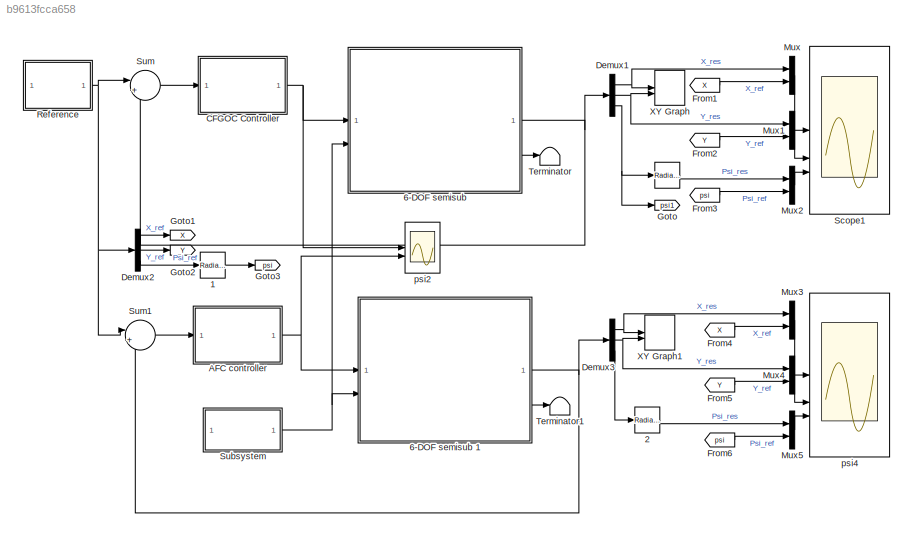
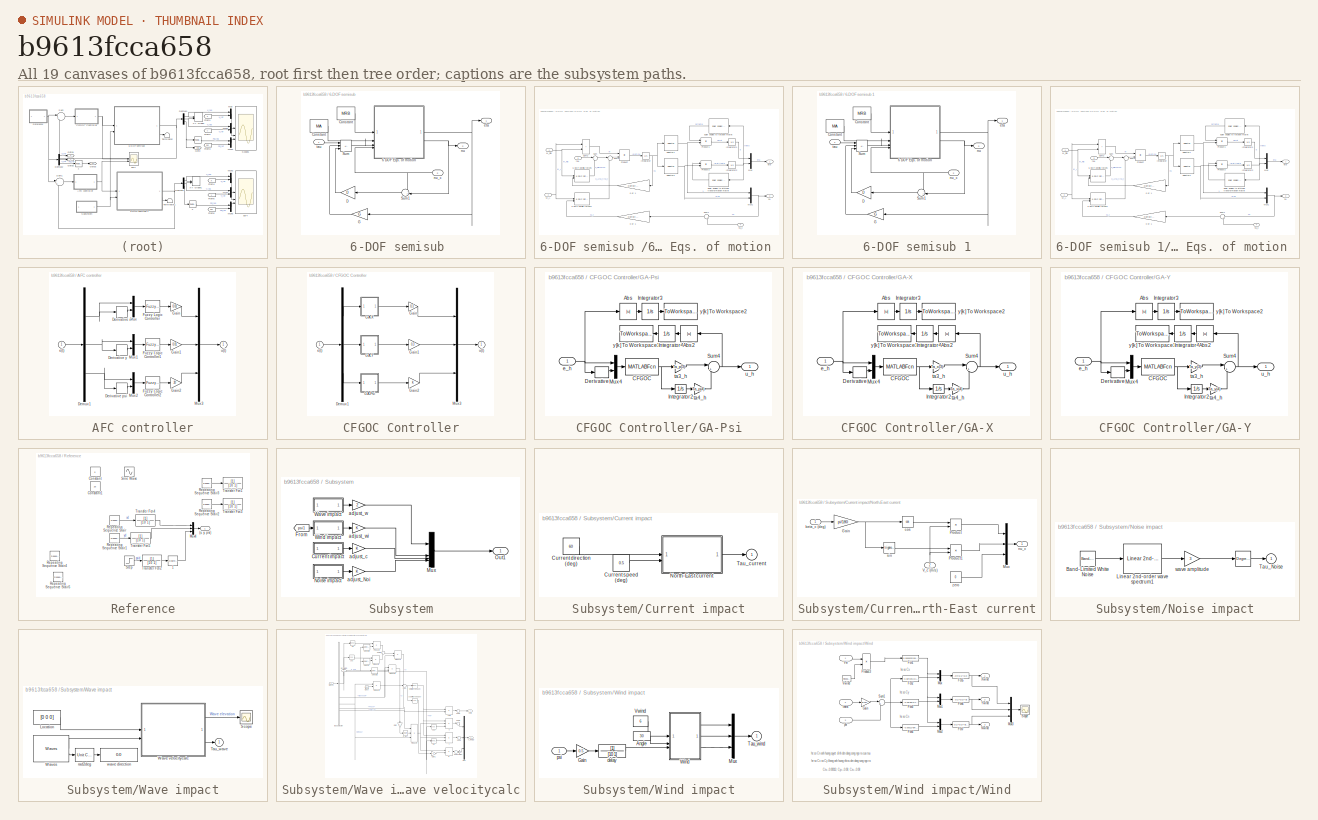
[diagram: thumbnail index - all 19 canvases of the model, root first then tree order]
MODEL slx_b9613fcca658
KIND model
CONFIG AbsTol = auto
CONFIG EnableMultiTasking = on
CONFIG FixedStep = auto
CONFIG MaxStep = auto
CONFIG MinStep = auto
CONFIG RelTol = 1e-3
CONFIG SampleTimeConstraint = Unconstrained
CONFIG SolverName = ode45
CONFIG StartTime = 0.0
CONFIG StopTime = 1500
BLOCK [Reference]       REF=simulink_extras/Transformations/Radians
to Degrees
  SourceBlock = simulink_extras/Transformations/Radians\nto Degrees
  SourceType = RadiansToDegrees
BLOCK [Reference]     1  REF=simulink_extras/Transformations/Radians
to Degrees
  SourceBlock = simulink_extras/Transformations/Radians\nto Degrees
  SourceType = RadiansToDegrees
BLOCK [Reference]     2  REF=simulink_extras/Transformations/Radians
to Degrees
  SourceBlock = simulink_extras/Transformations/Radians\nto Degrees
  SourceType = RadiansToDegrees
BLOCK [SubSystem] 6-DOF semisub 
  AncestorBlock = mssSimulink/Marine craft models/6-DOF semisub
  InitFcn = load MSS/VESSELS/rigModel/rig.mat
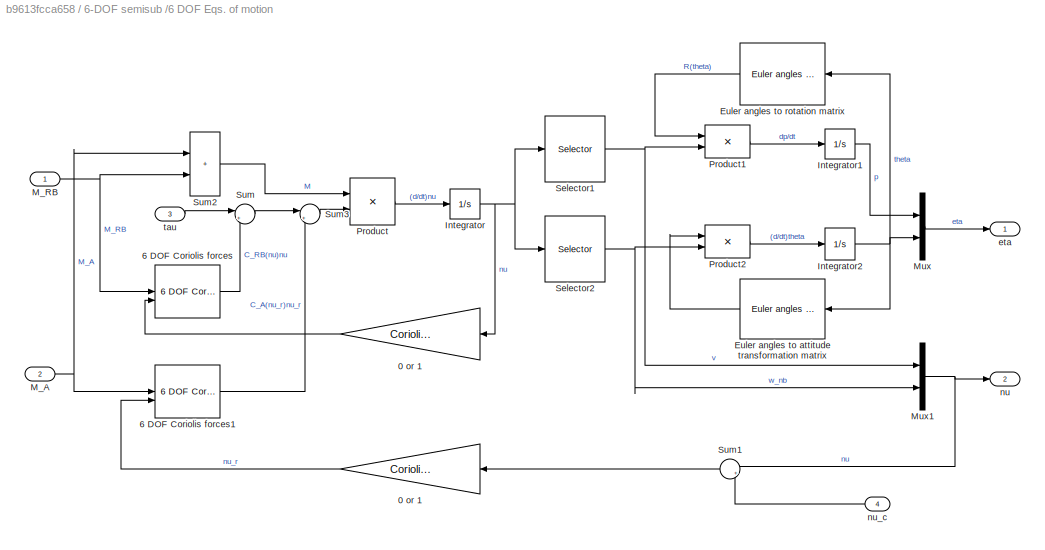
BLOCK [SubSystem] 6-DOF semisub /6 DOF Eqs. of motion 
  AncestorBlock = mssSimulink/Modelling/Kinetics /6 DOF Eqs. of motion
BLOCK [Gain] 6-DOF semisub /6 DOF Eqs. of motion /0 or 1
  Gain = CoriolisOnOff-1
  OutDataTypeStr = Inherit: Same as input
  ParamDataTypeStr = Inherit: Same as input
  SaturateOnIntegerOverflow = on
BLOCK [Gain] 6-DOF semisub /6 DOF Eqs. of motion /0 or 1   
  Gain = CoriolisOnOff-1
  OutDataTypeStr = Inherit: Same as input
  ParamDataTypeStr = Inherit: Same as input
  SaturateOnIntegerOverflow = on
BLOCK [Reference] 6-DOF semisub /6 DOF Eqs. of motion /6 DOF Coriolis forces  REF=mssSimulink/Modelling/Kinetics /Support/6 DOF Coriolis forces
  SourceBlock = mssSimulink/Modelling/Kinetics /Support/6 DOF Coriolis forces
  SourceType = SubSystem
BLOCK [Reference] 6-DOF semisub /6 DOF Eqs. of motion /6 DOF Coriolis forces1  REF=mssSimulink/Modelling/Kinetics /Support/6 DOF Coriolis forces
  SourceBlock = mssSimulink/Modelling/Kinetics /Support/6 DOF Coriolis forces
  SourceType = SubSystem
BLOCK [Reference] 6-DOF semisub /6 DOF Eqs. of motion /Euler angles to attitude transformation matrix  REF=mssSimulink/Modelling/Kinematics/Euler angles to attitude
transformation matrix
  SourceBlock = mssSimulink/Modelling/Kinematics/Euler angles to attitude\ntransformation matrix
  SourceType = Euler2T
BLOCK [Reference] 6-DOF semisub /6 DOF Eqs. of motion /Euler angles to rotation matrix  REF=mssSimulink/Modelling/Kinematics/Euler angles to
rotation matrix
  SourceBlock = mssSimulink/Modelling/Kinematics/Euler angles to\nrotation matrix
  SourceType = Euler2R
BLOCK [Integrator] 6-DOF semisub /6 DOF Eqs. of motion /Integrator
  InitialCondition = nu0
BLOCK [Integrator] 6-DOF semisub /6 DOF Eqs. of motion /Integrator1
  InitialCondition = eta0(1:3)
BLOCK [Integrator] 6-DOF semisub /6 DOF Eqs. of motion /Integrator2
  InitialCondition = eta0(4:6)
BLOCK [Inport] 6-DOF semisub /6 DOF Eqs. of motion /M_A
  Port = 2
BLOCK [Inport] 6-DOF semisub /6 DOF Eqs. of motion /M_RB
BLOCK [Mux] 6-DOF semisub /6 DOF Eqs. of motion /Mux
  DisplayOption = bar
  Inputs = 2
BLOCK [Mux] 6-DOF semisub /6 DOF Eqs. of motion /Mux1
  DisplayOption = bar
  Inputs = 2
BLOCK [Product] 6-DOF semisub /6 DOF Eqs. of motion /Product
  Inputs = /*
  Multiplication = Matrix(*)
  OutDataTypeStr = Inherit: Same as first input
  SaturateOnIntegerOverflow = on
BLOCK [Product] 6-DOF semisub /6 DOF Eqs. of motion /Product1
  Inputs = **
  Multiplication = Matrix(*)
  OutDataTypeStr = Inherit: Same as first input
  SaturateOnIntegerOverflow = on
BLOCK [Product] 6-DOF semisub /6 DOF Eqs. of motion /Product2
  Inputs = **
  Multiplication = Matrix(*)
  OutDataTypeStr = Inherit: Same as first input
  SaturateOnIntegerOverflow = on
BLOCK [Selector] 6-DOF semisub /6 DOF Eqs. of motion /Selector1
  IndexOptions = Index vector (dialog)
  Indices = [1 2 3]
  InputPortWidth = 6
  OutputSizes = 1
BLOCK [Selector] 6-DOF semisub /6 DOF Eqs. of motion /Selector2
  IndexOptions = Index vector (dialog)
  Indices = [4 5 6]
  InputPortWidth = 6
  OutputSizes = 1
BLOCK [Sum] 6-DOF semisub /6 DOF Eqs. of motion /Sum
  Inputs = |+-
  SaturateOnIntegerOverflow = on
BLOCK [Sum] 6-DOF semisub /6 DOF Eqs. of motion /Sum1
  Inputs = |+-
  NameLocation = top
  SaturateOnIntegerOverflow = on
BLOCK [Sum] 6-DOF semisub /6 DOF Eqs. of motion /Sum2
  IconShape = rectangular
  SaturateOnIntegerOverflow = on
BLOCK [Sum] 6-DOF semisub /6 DOF Eqs. of motion /Sum3
  Inputs = |+-
  SaturateOnIntegerOverflow = on
BLOCK [Outport] 6-DOF semisub /6 DOF Eqs. of motion /eta
  VectorParamsAs1DForOutWhenUnconnected = off
BLOCK [Outport] 6-DOF semisub /6 DOF Eqs. of motion /nu
  Port = 2
  VectorParamsAs1DForOutWhenUnconnected = off
BLOCK [Inport] 6-DOF semisub /6 DOF Eqs. of motion /nu_c
  Port = 4
BLOCK [Inport] 6-DOF semisub /6 DOF Eqs. of motion /tau
  Port = 3
BLOCK [Constant] 6-DOF semisub /Constant
  Value = MRB
BLOCK [Constant] 6-DOF semisub /Constant 
  Value = MA
BLOCK [Gain] 6-DOF semisub /D
  Gain = D
  Multiplication = Matrix(K*u)
  OutDataTypeStr = Inherit: Same as input
  ParamDataTypeStr = Inherit: Same as input
  SaturateOnIntegerOverflow = on
BLOCK [Gain] 6-DOF semisub /G
  Gain = G
  Multiplication = Matrix(K*u)
  OutDataTypeStr = Inherit: Same as input
  ParamDataTypeStr = Inherit: Same as input
  SaturateOnIntegerOverflow = on
BLOCK [Sum] 6-DOF semisub /Sum
  IconShape = rectangular
  InputSameDT = on
  Inputs = +--
  OutDataTypeStr = Inherit: Same as first input
  SaturateOnIntegerOverflow = on
BLOCK [Sum] 6-DOF semisub /Sum1
  Inputs = -+|
  NameLocation = top
  SaturateOnIntegerOverflow = on
BLOCK [Outport] 6-DOF semisub /eta
  InitialOutput = 0
  VectorParamsAs1DForOutWhenUnconnected = off
BLOCK [Outport] 6-DOF semisub /nu
  InitialOutput = 0
  Port = 2
  VectorParamsAs1DForOutWhenUnconnected = off
BLOCK [Inport] 6-DOF semisub /nu_c
  Port = 2
BLOCK [Inport] 6-DOF semisub /tau
BLOCK [SubSystem] 6-DOF semisub 1
  AncestorBlock = mssSimulink/Marine craft models/6-DOF semisub
  InitFcn = load MSS/VESSELS/rigModel/rig.mat
BLOCK [SubSystem] 6-DOF semisub 1/6 DOF Eqs. of motion 
  AncestorBlock = mssSimulink/Modelling/Kinetics /6 DOF Eqs. of motion
BLOCK [Gain] 6-DOF semisub 1/6 DOF Eqs. of motion /0 or 1
  Gain = CoriolisOnOff-1
  OutDataTypeStr = Inherit: Same as input
  ParamDataTypeStr = Inherit: Same as input
  SaturateOnIntegerOverflow = on
BLOCK [Gain] 6-DOF semisub 1/6 DOF Eqs. of motion /0 or 1   
  Gain = CoriolisOnOff-1
  OutDataTypeStr = Inherit: Same as input
  ParamDataTypeStr = Inherit: Same as input
  SaturateOnIntegerOverflow = on
BLOCK [Reference] 6-DOF semisub 1/6 DOF Eqs. of motion /6 DOF Coriolis forces  REF=mssSimulink/Modelling/Kinetics /Support/6 DOF Coriolis forces
  SourceBlock = mssSimulink/Modelling/Kinetics /Support/6 DOF Coriolis forces
  SourceType = SubSystem
BLOCK [Reference] 6-DOF semisub 1/6 DOF Eqs. of motion /6 DOF Coriolis forces1  REF=mssSimulink/Modelling/Kinetics /Support/6 DOF Coriolis forces
  SourceBlock = mssSimulink/Modelling/Kinetics /Support/6 DOF Coriolis forces
  SourceType = SubSystem
BLOCK [Reference] 6-DOF semisub 1/6 DOF Eqs. of motion /Euler angles to attitude transformation matrix  REF=mssSimulink/Modelling/Kinematics/Euler angles to attitude
transformation matrix
  SourceBlock = mssSimulink/Modelling/Kinematics/Euler angles to attitude\ntransformation matrix
  SourceType = Euler2T
BLOCK [Reference] 6-DOF semisub 1/6 DOF Eqs. of motion /Euler angles to rotation matrix  REF=mssSimulink/Modelling/Kinematics/Euler angles to
rotation matrix
  SourceBlock = mssSimulink/Modelling/Kinematics/Euler angles to\nrotation matrix
  SourceType = Euler2R
BLOCK [Integrator] 6-DOF semisub 1/6 DOF Eqs. of motion /Integrator
  InitialCondition = nu0
BLOCK [Integrator] 6-DOF semisub 1/6 DOF Eqs. of motion /Integrator1
  InitialCondition = eta0(1:3)
BLOCK [Integrator] 6-DOF semisub 1/6 DOF Eqs. of motion /Integrator2
  InitialCondition = eta0(4:6)
BLOCK [Inport] 6-DOF semisub 1/6 DOF Eqs. of motion /M_A
  Port = 2
BLOCK [Inport] 6-DOF semisub 1/6 DOF Eqs. of motion /M_RB
BLOCK [Mux] 6-DOF semisub 1/6 DOF Eqs. of motion /Mux
  DisplayOption = bar
  Inputs = 2
BLOCK [Mux] 6-DOF semisub 1/6 DOF Eqs. of motion /Mux1
  DisplayOption = bar
  Inputs = 2
BLOCK [Product] 6-DOF semisub 1/6 DOF Eqs. of motion /Product
  Inputs = /*
  Multiplication = Matrix(*)
  OutDataTypeStr = Inherit: Same as first input
  SaturateOnIntegerOverflow = on
BLOCK [Product] 6-DOF semisub 1/6 DOF Eqs. of motion /Product1
  Inputs = **
  Multiplication = Matrix(*)
  OutDataTypeStr = Inherit: Same as first input
  SaturateOnIntegerOverflow = on
BLOCK [Product] 6-DOF semisub 1/6 DOF Eqs. of motion /Product2
  Inputs = **
  Multiplication = Matrix(*)
  OutDataTypeStr = Inherit: Same as first input
  SaturateOnIntegerOverflow = on
BLOCK [Selector] 6-DOF semisub 1/6 DOF Eqs. of motion /Selector1
  IndexOptions = Index vector (dialog)
  Indices = [1 2 3]
  InputPortWidth = 6
  OutputSizes = 1
BLOCK [Selector] 6-DOF semisub 1/6 DOF Eqs. of motion /Selector2
  IndexOptions = Index vector (dialog)
  Indices = [4 5 6]
  InputPortWidth = 6
  OutputSizes = 1
BLOCK [Sum] 6-DOF semisub 1/6 DOF Eqs. of motion /Sum
  Inputs = |+-
  SaturateOnIntegerOverflow = on
BLOCK [Sum] 6-DOF semisub 1/6 DOF Eqs. of motion /Sum1
  Inputs = |+-
  NameLocation = top
  SaturateOnIntegerOverflow = on
BLOCK [Sum] 6-DOF semisub 1/6 DOF Eqs. of motion /Sum2
  IconShape = rectangular
  SaturateOnIntegerOverflow = on
BLOCK [Sum] 6-DOF semisub 1/6 DOF Eqs. of motion /Sum3
  Inputs = |+-
  SaturateOnIntegerOverflow = on
BLOCK [Outport] 6-DOF semisub 1/6 DOF Eqs. of motion /eta
  VectorParamsAs1DForOutWhenUnconnected = off
BLOCK [Outport] 6-DOF semisub 1/6 DOF Eqs. of motion /nu
  Port = 2
  VectorParamsAs1DForOutWhenUnconnected = off
BLOCK [Inport] 6-DOF semisub 1/6 DOF Eqs. of motion /nu_c
  Port = 4
BLOCK [Inport] 6-DOF semisub 1/6 DOF Eqs. of motion /tau
  Port = 3
BLOCK [Constant] 6-DOF semisub 1/Constant
  Value = MRB
BLOCK [Constant] 6-DOF semisub 1/Constant 
  Value = MA
BLOCK [Gain] 6-DOF semisub 1/D
  Gain = D
  Multiplication = Matrix(K*u)
  OutDataTypeStr = Inherit: Same as input
  ParamDataTypeStr = Inherit: Same as input
  SaturateOnIntegerOverflow = on
BLOCK [Gain] 6-DOF semisub 1/G
  Gain = G
  Multiplication = Matrix(K*u)
  OutDataTypeStr = Inherit: Same as input
  ParamDataTypeStr = Inherit: Same as input
  SaturateOnIntegerOverflow = on
BLOCK [Sum] 6-DOF semisub 1/Sum
  IconShape = rectangular
  InputSameDT = on
  Inputs = +--
  OutDataTypeStr = Inherit: Same as first input
  SaturateOnIntegerOverflow = on
BLOCK [Sum] 6-DOF semisub 1/Sum1
  Inputs = -+|
  NameLocation = top
  SaturateOnIntegerOverflow = on
BLOCK [Outport] 6-DOF semisub 1/eta
  InitialOutput = 0
  VectorParamsAs1DForOutWhenUnconnected = off
BLOCK [Outport] 6-DOF semisub 1/nu
  InitialOutput = 0
  Port = 2
  VectorParamsAs1DForOutWhenUnconnected = off
BLOCK [Inport] 6-DOF semisub 1/nu_c
  Port = 2
BLOCK [Inport] 6-DOF semisub 1/tau
BLOCK [SubSystem] AFC controller
BLOCK [Demux] AFC controller/Demux1
  Outputs = 3
BLOCK [Derivative] AFC controller/Derivative psi
BLOCK [Derivative] AFC controller/Derivative x
BLOCK [Derivative] AFC controller/Derivative y
BLOCK [Reference] AFC controller/Fuzzy Logic Controller  REF=fuzblock/Fuzzy Logic   (lib defined in mdl_858b3b3e7478)
Controller
  SourceBlock = fuzblock/Fuzzy Logic \nController
  SourceType = Fuzzy Inference System
BLOCK [Reference] AFC controller/Fuzzy Logic Controller1  REF=fuzblock/Fuzzy Logic   (lib defined in mdl_858b3b3e7478)
Controller
  SourceBlock = fuzblock/Fuzzy Logic \nController
  SourceType = Fuzzy Inference System
BLOCK [Reference] AFC controller/Fuzzy Logic Controller2  REF=fuzblock/Fuzzy Logic   (lib defined in mdl_858b3b3e7478)
Controller
  SourceBlock = fuzblock/Fuzzy Logic \nController
  SourceType = Fuzzy Inference System
BLOCK [Gain] AFC controller/Gain
  Gain = 0.03
BLOCK [Gain] AFC controller/Gain1
  Gain = 0.01
BLOCK [Gain] AFC controller/Gain2
  Gain = 20
BLOCK [Mux] AFC controller/Mux
  DisplayOption = bar
  Inputs = 2
BLOCK [Mux] AFC controller/Mux1
  DisplayOption = bar
  Inputs = 2
BLOCK [Mux] AFC controller/Mux2
  DisplayOption = bar
  Inputs = 2
BLOCK [Mux] AFC controller/Mux3
  DisplayOption = bar
  Inputs = 3
BLOCK [Inport] AFC controller/e(t)
BLOCK [Outport] AFC controller/u(t)
BLOCK [SubSystem] CFGOC Controller
BLOCK [Demux] CFGOC Controller/Demux1
  Outputs = 3
BLOCK [SubSystem] CFGOC Controller/GA-Psi
BLOCK [Abs] CFGOC Controller/GA-Psi/Abs
  SaturateOnIntegerOverflow = off
BLOCK [Abs] CFGOC Controller/GA-Psi/Abs2
  NameLocation = top
  SaturateOnIntegerOverflow = off
BLOCK [MATLABFcn] CFGOC Controller/GA-Psi/CFGOC
  MATLABFcn = TFC_xp
  OutputDimensions = 1
BLOCK [Derivative] CFGOC Controller/GA-Psi/Derivative
BLOCK [Integrator] CFGOC Controller/GA-Psi/Integrator2
BLOCK [Integrator] CFGOC Controller/GA-Psi/Integrator3
BLOCK [Integrator] CFGOC Controller/GA-Psi/Integrator4
  NameLocation = top
BLOCK [Mux] CFGOC Controller/GA-Psi/Mux4
  DisplayOption = bar
  Inputs = 2
BLOCK [Sum] CFGOC Controller/GA-Psi/Sum4
  InputSameDT = on
  Inputs = |++
  OutDataTypeStr = Inherit: Same as first input
  SaturateOnIntegerOverflow = on
BLOCK [Inport] CFGOC Controller/GA-Psi/e_h
BLOCK [Gain] CFGOC Controller/GA-Psi/ta3_h
  Gain = Ta_p(3)
BLOCK [Gain] CFGOC Controller/GA-Psi/ta4_h
  Gain = Ta_p(4)
  NameLocation = top
BLOCK [Outport] CFGOC Controller/GA-Psi/u_h
BLOCK [ToWorkspace] CFGOC Controller/GA-Psi/y[k] To Workspace2
  MaxDataPoints = inf
  SampleTime = -1
  SaveFormat = Timeseries
  VariableName = Sysp_Out1
BLOCK [ToWorkspace] CFGOC Controller/GA-Psi/y[k] To Workspace3
  MaxDataPoints = inf
  NameLocation = top
  SampleTime = -1
  SaveFormat = Timeseries
  VariableName = Sysp_Out2
BLOCK [SubSystem] CFGOC Controller/GA-X
BLOCK [Abs] CFGOC Controller/GA-X/Abs
  SaturateOnIntegerOverflow = off
BLOCK [Abs] CFGOC Controller/GA-X/Abs2
  NameLocation = top
  SaturateOnIntegerOverflow = off
BLOCK [MATLABFcn] CFGOC Controller/GA-X/CFGOC
  MATLABFcn = TFC_xx
  OutputDimensions = 1
BLOCK [Derivative] CFGOC Controller/GA-X/Derivative
BLOCK [Integrator] CFGOC Controller/GA-X/Integrator2
BLOCK [Integrator] CFGOC Controller/GA-X/Integrator3
BLOCK [Integrator] CFGOC Controller/GA-X/Integrator4
  NameLocation = top
BLOCK [Mux] CFGOC Controller/GA-X/Mux4
  DisplayOption = bar
  Inputs = 2
BLOCK [Sum] CFGOC Controller/GA-X/Sum4
  InputSameDT = on
  Inputs = |++
  OutDataTypeStr = Inherit: Same as first input
  SaturateOnIntegerOverflow = on
BLOCK [Inport] CFGOC Controller/GA-X/e_h
BLOCK [Gain] CFGOC Controller/GA-X/ta3_h
  Gain = Ta_x(3)
BLOCK [Gain] CFGOC Controller/GA-X/ta4_h
  Gain = Ta_x(4)
  NameLocation = top
BLOCK [Outport] CFGOC Controller/GA-X/u_h
BLOCK [ToWorkspace] CFGOC Controller/GA-X/y[k] To Workspace2
  MaxDataPoints = inf
  SampleTime = -1
  SaveFormat = Timeseries
  VariableName = Sysx_Out1
BLOCK [ToWorkspace] CFGOC Controller/GA-X/y[k] To Workspace3
  MaxDataPoints = inf
  NameLocation = top
  SampleTime = -1
  SaveFormat = Timeseries
  VariableName = Sysx_Out2
BLOCK [SubSystem] CFGOC Controller/GA-Y
BLOCK [Abs] CFGOC Controller/GA-Y/Abs
  SaturateOnIntegerOverflow = off
BLOCK [Abs] CFGOC Controller/GA-Y/Abs2
  NameLocation = top
  SaturateOnIntegerOverflow = off
BLOCK [MATLABFcn] CFGOC Controller/GA-Y/CFGOC
  MATLABFcn = TFC_xy
  OutputDimensions = 1
BLOCK [Derivative] CFGOC Controller/GA-Y/Derivative
BLOCK [Integrator] CFGOC Controller/GA-Y/Integrator2
BLOCK [Integrator] CFGOC Controller/GA-Y/Integrator3
BLOCK [Integrator] CFGOC Controller/GA-Y/Integrator4
  NameLocation = top
BLOCK [Mux] CFGOC Controller/GA-Y/Mux4
  DisplayOption = bar
  Inputs = 2
BLOCK [Sum] CFGOC Controller/GA-Y/Sum4
  InputSameDT = on
  Inputs = |++
  OutDataTypeStr = Inherit: Same as first input
  SaturateOnIntegerOverflow = on
BLOCK [Inport] CFGOC Controller/GA-Y/e_h
BLOCK [Gain] CFGOC Controller/GA-Y/ta3_h
  Gain = Ta_y(3)
BLOCK [Gain] CFGOC Controller/GA-Y/ta4_h
  Gain = Ta_y(4)
  NameLocation = top
BLOCK [Outport] CFGOC Controller/GA-Y/u_h
BLOCK [ToWorkspace] CFGOC Controller/GA-Y/y[k] To Workspace2
  MaxDataPoints = inf
  SampleTime = -1
  SaveFormat = Timeseries
  VariableName = Sysy_Out1
BLOCK [ToWorkspace] CFGOC Controller/GA-Y/y[k] To Workspace3
  MaxDataPoints = inf
  NameLocation = top
  SampleTime = -1
  SaveFormat = Timeseries
  VariableName = Sysy_Out2
BLOCK [Gain] CFGOC Controller/Gain
  Gain = 0.3
BLOCK [Gain] CFGOC Controller/Gain1
  Gain = 0.3
BLOCK [Gain] CFGOC Controller/Gain2
BLOCK [Mux] CFGOC Controller/Mux3
  DisplayOption = bar
  Inputs = 3
BLOCK [Inport] CFGOC Controller/e(t)
BLOCK [Outport] CFGOC Controller/u(t)
BLOCK [Demux] Demux1
  DisplayOption = none
  Outputs = 3
BLOCK [Demux] Demux2
  DisplayOption = none
  Outputs = 3
BLOCK [Demux] Demux3
  DisplayOption = none
  Outputs = 3
BLOCK [From] From1
  GotoTag = X
BLOCK [From] From2
  GotoTag = Y
BLOCK [From] From3
  GotoTag = psi
BLOCK [From] From4
  GotoTag = X
BLOCK [From] From5
  GotoTag = Y
BLOCK [From] From6
  GotoTag = psi
BLOCK [Goto] Goto
  GotoTag = psi1
BLOCK [Goto] Goto1
  GotoTag = X
BLOCK [Goto] Goto2
  GotoTag = Y
BLOCK [Goto] Goto3
  GotoTag = psi
BLOCK [Mux] Mux
  DisplayOption = bar
  Inputs = 2
BLOCK [Mux] Mux1
  DisplayOption = bar
  Inputs = 2
BLOCK [Mux] Mux2
  DisplayOption = bar
  Inputs = 2
BLOCK [Mux] Mux3
  DisplayOption = bar
  Inputs = 2
BLOCK [Mux] Mux4
  DisplayOption = bar
  Inputs = 2
BLOCK [Mux] Mux5
  DisplayOption = bar
  Inputs = 2
BLOCK [SubSystem] Reference
BLOCK [Reference] Reference/     1  REF=simulink_extras/Transformations/Degrees to
Radians
  SourceBlock = simulink_extras/Transformations/Degrees to\nRadians
  SourceType = DegreesToRadians
BLOCK [Outport] Reference/(x, y, psi)
BLOCK [Constant] Reference/Constant
  Value = 5
BLOCK [Constant] Reference/Constant1
  Value = 25
BLOCK [Mux] Reference/Mux4
  DisplayOption = bar
  Inputs = 3
BLOCK [Reference] Reference/Repeating Sequence Stair  REF=simulink/Sources/Repeating
Sequence
Stair
  SourceBlock = simulink/Sources/Repeating\nSequence\nStair
  SourceType = Repeating Sequence Stair
BLOCK [Reference] Reference/Repeating Sequence Stair1  REF=simulink/Sources/Repeating
Sequence
Stair
  SourceBlock = simulink/Sources/Repeating\nSequence\nStair
  SourceType = Repeating Sequence Stair
BLOCK [Reference] Reference/Repeating Sequence Stair2  REF=simulink/Sources/Repeating
Sequence
Stair
  SourceBlock = simulink/Sources/Repeating\nSequence\nStair
  SourceType = Repeating Sequence Stair
BLOCK [Reference] Reference/Repeating Sequence Stair3  REF=simulink/Sources/Repeating
Sequence
Stair
  SourceBlock = simulink/Sources/Repeating\nSequence\nStair
  SourceType = Repeating Sequence Stair
BLOCK [Reference] Reference/Repeating Sequence Stair4  REF=simulink/Sources/Repeating
Sequence
Stair
  SourceBlock = simulink/Sources/Repeating\nSequence\nStair
  SourceType = Repeating Sequence Stair
BLOCK [Reference] Reference/Repeating Sequence Stair5  REF=simulink/Sources/Repeating
Sequence
Stair
  SourceBlock = simulink/Sources/Repeating\nSequence\nStair
  SourceType = Repeating Sequence Stair
BLOCK [Sin] Reference/Sine Wave
  Frequency = 4
  SampleTime = 0
BLOCK [Step] Reference/Step
  After = 20
  SampleTime = 0
  Time = 0
BLOCK [TransferFcn] Reference/Transfer Fcn1
  Denominator = [10 1]
BLOCK [TransferFcn] Reference/Transfer Fcn2
  Denominator = [10 1]
BLOCK [TransferFcn] Reference/Transfer Fcn3
  Denominator = [10 1]
BLOCK [TransferFcn] Reference/Transfer Fcn4
  Denominator = [10 1]
BLOCK [TransferFcn] Reference/Transfer Fcn5
  Denominator = [10 1]
BLOCK [Scope] Scope1
  Floating = off
  NumInputPorts = 3
  ScopeSpecificationString = Simulink.scopes.TimeScopeBlockCfg('CurrentConfiguration', extmgr.ConfigurationSet(extmgr.Configuration('Core','General UI',true),extmgr.Configuration('Core','Source UI',true),extmgr.Configuration('Sources','WiredSimulink',true,'DataLoggingVariableName','ScopeData2','DataLoggingLimitDataPoints',true,'DataLoggingSaveFormat','Array','DataLoggingDecimation','1','DataLoggingDecimateData',true),extmgr.C...<+165ch>
BLOCK [SubSystem] Subsystem
BLOCK [SubSystem] Subsystem/Current impact
BLOCK [Constant] Subsystem/Current impact/Current direction (deg)
  Value = 60
BLOCK [Constant] Subsystem/Current impact/Current speed (deg)
  Value = 0.5
BLOCK [SubSystem] Subsystem/Current impact/North-East current
  AncestorBlock = marine_gnc/Environment/Current/North-East current
BLOCK [Gain] Subsystem/Current impact/North-East current/Gain
  Gain = pi/180
BLOCK [Mux] Subsystem/Current impact/North-East current/Mux
  DisplayOption = bar
  Inputs = 3
BLOCK [Product] Subsystem/Current impact/North-East current/Product
  RndMeth = Zero
BLOCK [Product] Subsystem/Current impact/North-East current/Product1
  RndMeth = Zero
BLOCK [Inport] Subsystem/Current impact/North-East current/V_c (m//s)
  NameLocation = left
  Port = 2
BLOCK [Inport] Subsystem/Current impact/North-East current/beta_c (deg)
BLOCK [Trigonometry] Subsystem/Current impact/North-East current/cos
  Operator = cos
BLOCK [Outport] Subsystem/Current impact/North-East current/nu_c
BLOCK [Trigonometry] Subsystem/Current impact/North-East current/sin
BLOCK [Constant] Subsystem/Current impact/North-East current/zero
  Value = 0
BLOCK [Outport] Subsystem/Current impact/Tau_current
BLOCK [From] Subsystem/From
  GotoTag = psi1
BLOCK [Mux] Subsystem/Mux
  DisplayOption = bar
BLOCK [SubSystem] Subsystem/Noise impact
BLOCK [Reference] Subsystem/Noise impact/     REF=simulink_extras/Transformations/Degrees to
Radians
  SourceBlock = simulink_extras/Transformations/Degrees to\nRadians
  SourceType = DegreesToRadians
BLOCK [Reference] Subsystem/Noise impact/Band-Limited White Noise  REF=simulink/Sources/Band-Limited
White Noise
  SourceBlock = simulink/Sources/Band-Limited\nWhite Noise
  SourceType = Band-Limited White Noise.
BLOCK [Reference] Subsystem/Noise impact/Linear 2nd-order wave spectrum1  REF=marine_gnc/Environment/Waves/Linear 2nd-order   (lib defined in mdl_10d96c221ba8, mdl_45f1105420c6)
wave spectrum
  SourceBlock = marine_gnc/Environment/Waves/Linear 2nd-order \nwave spectrum
BLOCK [Outport] Subsystem/Noise impact/Tau_Noise
BLOCK [Gain] Subsystem/Noise impact/wave amplitude
  Gain = 3
  NameLocation = top
  OutDataTypeStr = Inherit: Same as input
  ParamDataTypeStr = Inherit: Same as input
  SaturateOnIntegerOverflow = on
BLOCK [Outport] Subsystem/Out1
BLOCK [SubSystem] Subsystem/Wave impact
BLOCK [Constant] Subsystem/Wave impact/Location
  Value = [0 0 0]
BLOCK [Scope] Subsystem/Wave impact/Scope
  Floating = off
  NumInputPorts = 1
  ScopeSpecificationString = Simulink.scopes.TimeScopeBlockCfg('CurrentConfiguration', extmgr.ConfigurationSet(extmgr.Configuration('Core','General UI',true),extmgr.Configuration('Core','Source UI',true),extmgr.Configuration('Sources','WiredSimulink',true,'DataLoggingVariableName','ScopeData2','DataLoggingLimitDataPoints',true,'DataLoggingSaveFormat','Array','DataLoggingDecimation','1','DataLoggingDecimateData',true),extmgr.C...<+1525ch>
BLOCK [Outport] Subsystem/Wave impact/Tau_wave
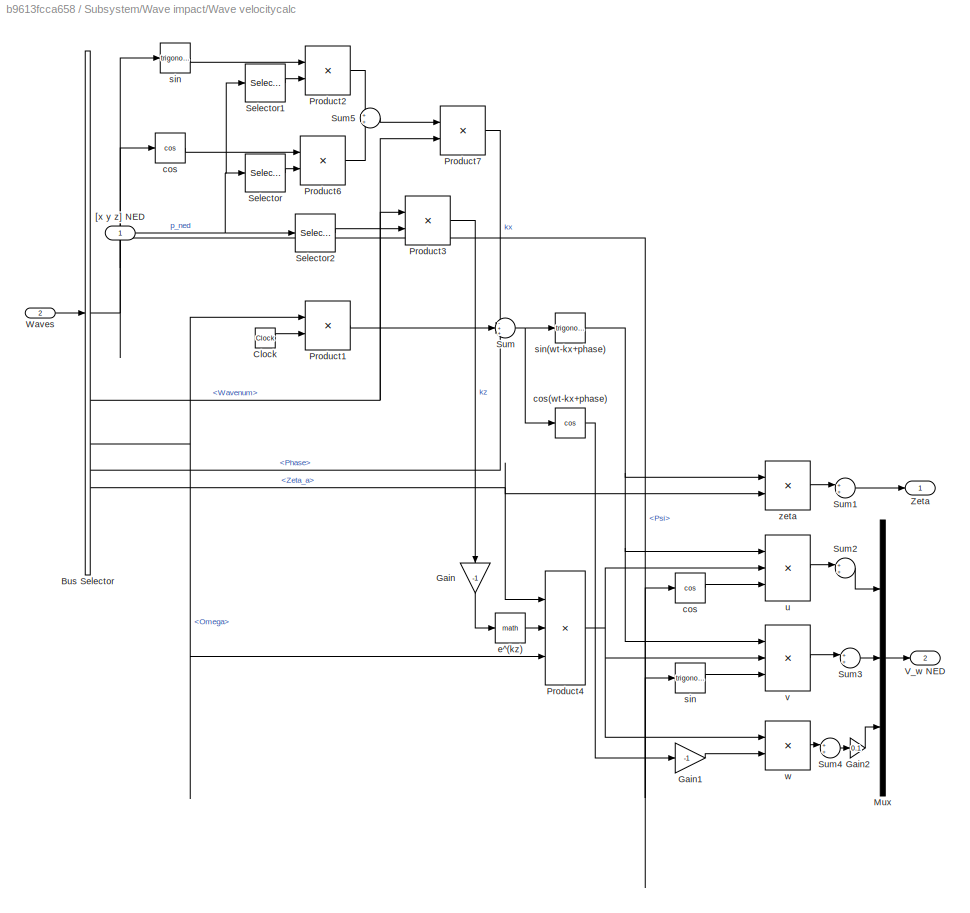
BLOCK [SubSystem] Subsystem/Wave impact/Wave velocitycalc
  AncestorBlock = marine_gnc/Environment/Waves/Wave velocitycalc
BLOCK [BusSelector] Subsystem/Wave impact/Wave velocitycalc/Bus Selector
  OutputSignals = Psi,Wavenum,Omega,Phase,Zeta_a
BLOCK [Clock] Subsystem/Wave impact/Wave velocitycalc/Clock
BLOCK [Gain] Subsystem/Wave impact/Wave velocitycalc/Gain
  Gain = -1
  NameLocation = left
  OutDataTypeStr = Inherit: Same as input
  ParamDataTypeStr = Inherit: Same as input
  SaturateOnIntegerOverflow = on
BLOCK [Gain] Subsystem/Wave impact/Wave velocitycalc/Gain1
  Gain = -1
  OutDataTypeStr = Inherit: Same as input
  ParamDataTypeStr = Inherit: Same as input
  SaturateOnIntegerOverflow = on
BLOCK [Gain] Subsystem/Wave impact/Wave velocitycalc/Gain2
  Gain = 0.1
  OutDataTypeStr = Inherit: Same as input
  ParamDataTypeStr = Inherit: Same as input
  SaturateOnIntegerOverflow = on
BLOCK [Mux] Subsystem/Wave impact/Wave velocitycalc/Mux
  DisplayOption = bar
  Inputs = 3
BLOCK [Product] Subsystem/Wave impact/Wave velocitycalc/Product1
  Inputs = **
  OutDataTypeStr = Inherit: Same as first input
  SaturateOnIntegerOverflow = on
BLOCK [Product] Subsystem/Wave impact/Wave velocitycalc/Product2
  Inputs = **
  OutDataTypeStr = Inherit: Same as first input
  SaturateOnIntegerOverflow = on
BLOCK [Product] Subsystem/Wave impact/Wave velocitycalc/Product3
  Inputs = **
  OutDataTypeStr = Inherit: Same as first input
  SaturateOnIntegerOverflow = on
BLOCK [Product] Subsystem/Wave impact/Wave velocitycalc/Product4
  Inputs = 3
  OutDataTypeStr = Inherit: Same as first input
  SaturateOnIntegerOverflow = on
BLOCK [Product] Subsystem/Wave impact/Wave velocitycalc/Product6
  Inputs = **
  OutDataTypeStr = Inherit: Same as first input
  SaturateOnIntegerOverflow = on
BLOCK [Product] Subsystem/Wave impact/Wave velocitycalc/Product7
  Inputs = **
  OutDataTypeStr = Inherit: Same as first input
  SaturateOnIntegerOverflow = on
BLOCK [Selector] Subsystem/Wave impact/Wave velocitycalc/Selector
  IndexOptions = Index vector (dialog)
  Indices = 1
  InputPortWidth = 3
  OutputSizes = 1
BLOCK [Selector] Subsystem/Wave impact/Wave velocitycalc/Selector1
  IndexOptions = Index vector (dialog)
  Indices = 2
  InputPortWidth = 3
  OutputSizes = 1
BLOCK [Selector] Subsystem/Wave impact/Wave velocitycalc/Selector2
  IndexOptions = Index vector (dialog)
  Indices = 3
  InputPortWidth = 3
  OutputSizes = 1
BLOCK [Sum] Subsystem/Wave impact/Wave velocitycalc/Sum
  Inputs = -++
  SaturateOnIntegerOverflow = on
BLOCK [Sum] Subsystem/Wave impact/Wave velocitycalc/Sum1
  Inputs = 1
  SaturateOnIntegerOverflow = on
BLOCK [Sum] Subsystem/Wave impact/Wave velocitycalc/Sum2
  Inputs = 1
  SaturateOnIntegerOverflow = on
BLOCK [Sum] Subsystem/Wave impact/Wave velocitycalc/Sum3
  Inputs = 1
  SaturateOnIntegerOverflow = on
BLOCK [Sum] Subsystem/Wave impact/Wave velocitycalc/Sum4
  Inputs = 1
  SaturateOnIntegerOverflow = on
BLOCK [Sum] Subsystem/Wave impact/Wave velocitycalc/Sum5
  SaturateOnIntegerOverflow = on
BLOCK [Outport] Subsystem/Wave impact/Wave velocitycalc/V_w NED
  Port = 2
BLOCK [Inport] Subsystem/Wave impact/Wave velocitycalc/Waves
  Port = 2
BLOCK [Outport] Subsystem/Wave impact/Wave velocitycalc/Zeta
BLOCK [Inport] Subsystem/Wave impact/Wave velocitycalc/[x y z] NED
BLOCK [Trigonometry] Subsystem/Wave impact/Wave velocitycalc/cos
  Operator = cos
BLOCK [Trigonometry] Subsystem/Wave impact/Wave velocitycalc/cos 
  Operator = cos
BLOCK [Trigonometry] Subsystem/Wave impact/Wave velocitycalc/cos(wt-kx+phase)
  Operator = cos
BLOCK [Math] Subsystem/Wave impact/Wave velocitycalc/e^(kz)
  SignedPower = on
BLOCK [Trigonometry] Subsystem/Wave impact/Wave velocitycalc/sin
BLOCK [Trigonometry] Subsystem/Wave impact/Wave velocitycalc/sin 
BLOCK [Trigonometry] Subsystem/Wave impact/Wave velocitycalc/sin(wt-kx+phase)
BLOCK [Product] Subsystem/Wave impact/Wave velocitycalc/u
  Inputs = ***
  OutDataTypeStr = Inherit: Same as first input
  SaturateOnIntegerOverflow = on
BLOCK [Product] Subsystem/Wave impact/Wave velocitycalc/v
  Inputs = ***
  OutDataTypeStr = Inherit: Same as first input
  SaturateOnIntegerOverflow = on
BLOCK [Product] Subsystem/Wave impact/Wave velocitycalc/w
  Inputs = **
  OutDataTypeStr = Inherit: Same as first input
  SaturateOnIntegerOverflow = on
BLOCK [Product] Subsystem/Wave impact/Wave velocitycalc/zeta
  Inputs = **
  OutDataTypeStr = Inherit: Same as first input
  SaturateOnIntegerOverflow = on
BLOCK [Reference] Subsystem/Wave impact/Waves  REF=marine_gnc/Environment/Waves/Waves  (lib defined in mdl_10d96c221ba8, mdl_45f1105420c6)
  SourceBlock = marine_gnc/Environment/Waves/Waves
  SourceType = Waves
BLOCK [Reference] Subsystem/Wave impact/rad2deg  REF=marine_gnc/Utilities/Math Operations/Unit Conversion  (lib defined in mdl_10d96c221ba8, mdl_45f1105420c6)
  SourceBlock = marine_gnc/Utilities/Math Operations/Unit Conversion
  SourceType = Unit Conversion
BLOCK [Display] Subsystem/Wave impact/wave direction
  Decimation = 1
BLOCK [SubSystem] Subsystem/Wind impact
BLOCK [Constant] Subsystem/Wind impact/Angle
  Value = 30
BLOCK [Gain] Subsystem/Wind impact/Gain
  Gain = 0.5
BLOCK [Mux] Subsystem/Wind impact/Mux
  DisplayOption = bar
  Inputs = 3
BLOCK [Outport] Subsystem/Wind impact/Tau_wind
BLOCK [Constant] Subsystem/Wind impact/Vwind
  NameLocation = top
  Value = 6
BLOCK [SubSystem] Subsystem/Wind impact/Wind
  NameLocation = top
BLOCK [Fcn] Subsystem/Wind impact/Wind/Fcn1
  Expr = 0.0000032*pa*u(1)*u(1)
BLOCK [Fcn] Subsystem/Wind impact/Wind/Fcn2
  Expr = -0.08*cos(u(1))
BLOCK [Fcn] Subsystem/Wind impact/Wind/Fcn3
  Expr = -0.08*sin(u(1))
BLOCK [Fcn] Subsystem/Wind impact/Wind/Fcn4
  Expr = -0.00011*sin(2*u(1))
BLOCK [Fcn] Subsystem/Wind impact/Wind/Fcn5
  Expr = Ats*u(1)*u(2)
BLOCK [Fcn] Subsystem/Wind impact/Wind/Fcn6
  Expr = u(1)*u(2)*Als
BLOCK [Fcn] Subsystem/Wind impact/Wind/Fcn7
  Expr = u(1)*u(2)*Als*Loa
BLOCK [Gain] Subsystem/Wind impact/Wind/Gain
  Gain = pi/180
BLOCK [Mux] Subsystem/Wind impact/Wind/Mux
  DisplayOption = bar
  Inputs = 2
BLOCK [Mux] Subsystem/Wind impact/Wind/Mux1
  DisplayOption = bar
  Inputs = 2
BLOCK [Mux] Subsystem/Wind impact/Wind/Mux2
  DisplayOption = bar
  Inputs = 2
BLOCK [Mux] Subsystem/Wind impact/Wind/Mux3
  DisplayOption = bar
  Inputs = 3
BLOCK [Outport] Subsystem/Wind impact/Wind/Nwind
  Port = 3
BLOCK [Product] Subsystem/Wind impact/Wind/Product3
  RndMeth = Zero
BLOCK [Scope] Subsystem/Wind impact/Wind/Scope
  Floating = off
  NumInputPorts = 1
  ScopeSpecificationString = C++SS(StrPVP('Location','[5, 48, 1285, 759]'),StrPVP('Open','off'),MxPVP('AxesTitles',54,'struct(''axes1'',''%<SignalLabel>'')'),StrPVP('ShowLegends','off'),StrPVP('YMin','-500000'),StrPVP('YMax','8e+006'),StrPVP('SaveName','ScopeData1'),StrPVP('DataFormat','StructureWithTime'),StrPVP('BlockParamSampleTime','0'),StrPVP('LimitDataPoints','on'),StrPVP('Decimation','1'),StrPVP('BlockParamSampleInput'...<+8ch>
BLOCK [Sum] Subsystem/Wind impact/Wind/Sum1
  Inputs = |+-
BLOCK [Inport] Subsystem/Wind impact/Wind/Vw
BLOCK [Reference] Subsystem/Wind impact/Wind/Vwind  REF=simulink/Sources/Repeating
Sequence
  NameLocation = top
  SourceBlock = simulink/Sources/Repeating\nSequence
  SourceType = Repeating table
BLOCK [Outport] Subsystem/Wind impact/Wind/Xwind
BLOCK [Outport] Subsystem/Wind impact/Wind/Ywind
  Port = 2
BLOCK [Inport] Subsystem/Wind impact/Wind/phi
  Port = 3
BLOCK [Inport] Subsystem/Wind impact/Wind/thera
  Port = 2
BLOCK [TransferFcn] Subsystem/Wind impact/delay
  Denominator = [10 1]
BLOCK [Inport] Subsystem/Wind impact/psi
BLOCK [Gain] Subsystem/adjust_Noi
BLOCK [Gain] Subsystem/adjust_c
BLOCK [Gain] Subsystem/adjust_w
  Gain = 2
BLOCK [Gain] Subsystem/adjust_wi
BLOCK [Sum] Sum
  Inputs = |+-
BLOCK [Sum] Sum1
  Inputs = |+-
BLOCK [Terminator] Terminator
BLOCK [Terminator] Terminator1
BLOCK [Record] XY Graph
  CompatibilityTag = XY
  FileSettingsInternal = {"entries":[{"content":{"excelSettings":{"content":{},"type":"Streamout.ExcelSettings"}},"type":"Streamout.FileSettingStorage","uuid":""}],"packageUris":["http:\/\/schema.mathworks.com\/mf0\/streamout_blocks\/R2020a"],"version":"1.0"}
  Layout = [1 1]
  SignalsInternal = {"entries":[{"content":{"signals":[{"content":{"blockPath":[],"dimensions":[1],"domain":"","lineColor":"#a2142f","plots":[1],"port":1,"signalID":43,"signalName":"XY Graph:1"},"type":"RecordBlkView.Signal","uuid":""},{"content":{"blockPath":[],"dimensions":[1],"domain":"","lineColor":"#139fff","plots":[1],"port":2,"signalID":46,"signalName":"XY Graph:2"},"type":"RecordBlkView.Signal","uuid":""}]},"...<+142ch>
  VisualizationBindings = {"xyplotplugin":{"info":[{"series":[{"bindingParametersList":[{"parameter":"X-Axis","signalID":43,"signalName":"XY Graph:1"},{"parameter":"Y-Axis","signalID":46,"signalName":"XY Graph:2"}],"seriesID":58743}],"subplotID":1}]}}
  st = 0.1
BLOCK [Record] XY Graph1
  CompatibilityTag = XY
  FileSettingsInternal = {"entries":[{"content":{"excelSettings":{"content":{},"type":"Streamout.ExcelSettings"}},"type":"Streamout.FileSettingStorage","uuid":""}],"packageUris":["http:\/\/schema.mathworks.com\/mf0\/streamout_blocks\/R2020a"],"version":"1.0"}
  Layout = [1 1]
  SignalsInternal = {"entries":[{"content":{"signals":[{"content":{"blockPath":[],"dimensions":[1],"domain":"","lineColor":"#a2142f","plots":[1],"port":1,"signalID":35,"signalName":"X_res"},"type":"RecordBlkView.Signal","uuid":""},{"content":{"blockPath":[],"dimensions":[1],"domain":"","lineColor":"#139fff","plots":[1],"port":2,"signalID":38,"signalName":"Y_res"},"type":"RecordBlkView.Signal","uuid":""}]},"type":"Rec...<+132ch>
  VisualizationBindings = {"xyplotplugin":{"info":[{"series":[{"bindingParametersList":[{"parameter":"X-Axis","signalID":35,"signalName":"X_res"},{"parameter":"Y-Axis","signalID":38,"signalName":"Y_res"}],"seriesID":17634}],"subplotID":1}]}}
  st = 0.1
BLOCK [Scope] psi2
  Floating = off
  NumInputPorts = 2
  ScopeSpecificationString = Simulink.scopes.TimeScopeBlockCfg('CurrentConfiguration', extmgr.ConfigurationSet(extmgr.Configuration('Core','General UI',true,'FigureColor',[1 1 1]),extmgr.Configuration('Core','Source UI',true),extmgr.Configuration('Sources','WiredSimulink',true,'DataLogging',true,'DataLoggingSaveFormat','StructureWithTime','DataLoggingDecimation','1','DataLoggingDecimateData',true,'DataLoggingVariableName','Sc...<+5247ch>
BLOCK [Scope] psi4
  Floating = off
  NumInputPorts = 3
  ScopeSpecificationString = Simulink.scopes.TimeScopeBlockCfg('CurrentConfiguration', extmgr.ConfigurationSet(extmgr.Configuration('Core','General UI',true,'FigureColor',[1 1 1]),extmgr.Configuration('Core','Source UI',true),extmgr.Configuration('Sources','WiredSimulink',true,'DataLogging',true,'DataLoggingSaveFormat','StructureWithTime','DataLoggingDecimation','1','DataLoggingDecimateData',true,'DataLoggingVariableName','Sc...<+5261ch>
ANNOTATION Subsystem/Wind impact/Wind: Cn=-0.00013; Cy=-0.08; Cx=-0.08
ANNOTATION Subsystem/Wind impact/Wind: he so Cn
ANNOTATION Subsystem/Wind impact/Wind: he so Cn anh huong quyet dinh den dang song ngo ra cua tau
ANNOTATION Subsystem/Wind impact/Wind: he so Cx
ANNOTATION Subsystem/Wind impact/Wind: he so Cx va Cy khong anh huong nhieu den dang song ngo ra
ANNOTATION Subsystem/Wind impact/Wind: he so Cy
LINE     1:1 -> Goto3:1
LINE     2:1 -> Mux5:1
LINE     :1 -> Mux2:1
NET 6-DOF semisub 1:1 -> Demux3:1, Sum1:2
LINE 6-DOF semisub 1:2 -> Terminator1:1
NET 6-DOF semisub :1 -> Demux1:1, Sum:2
LINE 6-DOF semisub :2 -> Terminator:1
NET AFC controller/Demux1:1 -> AFC controller/Derivative x:1, AFC controller/Mux:1
NET AFC controller/Demux1:2 -> AFC controller/Derivative y:1, AFC controller/Mux1:1
NET AFC controller/Demux1:3 -> AFC controller/Derivative psi:1, AFC controller/Mux2:1
LINE AFC controller/Derivative psi:1 -> AFC controller/Mux2:2
LINE AFC controller/Derivative x:1 -> AFC controller/Mux:2
LINE AFC controller/Derivative y:1 -> AFC controller/Mux1:2
LINE AFC controller/Fuzzy Logic Controller1:1 -> AFC controller/Gain1:1
LINE AFC controller/Fuzzy Logic Controller2:1 -> AFC controller/Gain2:1
LINE AFC controller/Fuzzy Logic Controller:1 -> AFC controller/Gain:1
LINE AFC controller/Gain1:1 -> AFC controller/Mux3:2
LINE AFC controller/Gain2:1 -> AFC controller/Mux3:3
LINE AFC controller/Gain:1 -> AFC controller/Mux3:1
LINE AFC controller/Mux1:1 -> AFC controller/Fuzzy Logic Controller1:1
LINE AFC controller/Mux2:1 -> AFC controller/Fuzzy Logic Controller2:1
LINE AFC controller/Mux3:1 -> AFC controller/u(t):1
LINE AFC controller/Mux:1 -> AFC controller/Fuzzy Logic Controller:1
LINE AFC controller/e(t):1 -> AFC controller/Demux1:1
NET AFC controller:1 -> 6-DOF semisub 1:1, psi2:2
LINE CFGOC Controller/Demux1:1 -> CFGOC Controller/GA-X:1
LINE CFGOC Controller/Demux1:2 -> CFGOC Controller/GA-Y:1
LINE CFGOC Controller/Demux1:3 -> CFGOC Controller/GA-Psi:1
LINE CFGOC Controller/GA-Psi/Abs2:1 -> CFGOC Controller/GA-Psi/Integrator4:1
LINE CFGOC Controller/GA-Psi/Abs:1 -> CFGOC Controller/GA-Psi/Integrator3:1
NET CFGOC Controller/GA-Psi/CFGOC:1 -> CFGOC Controller/GA-Psi/Integrator2:1, CFGOC Controller/GA-Psi/ta3_h:1
LINE CFGOC Controller/GA-Psi/Derivative:1 -> CFGOC Controller/GA-Psi/Mux4:2
LINE CFGOC Controller/GA-Psi/Integrator2:1 -> CFGOC Controller/GA-Psi/ta4_h:1
LINE CFGOC Controller/GA-Psi/Integrator3:1 -> CFGOC Controller/GA-Psi/y[k] To Workspace2:1
LINE CFGOC Controller/GA-Psi/Integrator4:1 -> CFGOC Controller/GA-Psi/y[k] To Workspace3:1
LINE CFGOC Controller/GA-Psi/Mux4:1 -> CFGOC Controller/GA-Psi/CFGOC:1
NET CFGOC Controller/GA-Psi/Sum4:1 -> CFGOC Controller/GA-Psi/Abs2:1, CFGOC Controller/GA-Psi/u_h:1
NET CFGOC Controller/GA-Psi/e_h:1 -> CFGOC Controller/GA-Psi/Abs:1, CFGOC Controller/GA-Psi/Derivative:1, CFGOC Controller/GA-Psi/Mux4:1
LINE CFGOC Controller/GA-Psi/ta3_h:1 -> CFGOC Controller/GA-Psi/Sum4:1
LINE CFGOC Controller/GA-Psi/ta4_h:1 -> CFGOC Controller/GA-Psi/Sum4:2
LINE CFGOC Controller/GA-Psi:1 -> CFGOC Controller/Gain2:1
LINE CFGOC Controller/GA-X/Abs2:1 -> CFGOC Controller/GA-X/Integrator4:1
LINE CFGOC Controller/GA-X/Abs:1 -> CFGOC Controller/GA-X/Integrator3:1
NET CFGOC Controller/GA-X/CFGOC:1 -> CFGOC Controller/GA-X/Integrator2:1, CFGOC Controller/GA-X/ta3_h:1
LINE CFGOC Controller/GA-X/Derivative:1 -> CFGOC Controller/GA-X/Mux4:2
LINE CFGOC Controller/GA-X/Integrator2:1 -> CFGOC Controller/GA-X/ta4_h:1
LINE CFGOC Controller/GA-X/Integrator3:1 -> CFGOC Controller/GA-X/y[k] To Workspace2:1
LINE CFGOC Controller/GA-X/Integrator4:1 -> CFGOC Controller/GA-X/y[k] To Workspace3:1
LINE CFGOC Controller/GA-X/Mux4:1 -> CFGOC Controller/GA-X/CFGOC:1
NET CFGOC Controller/GA-X/Sum4:1 -> CFGOC Controller/GA-X/Abs2:1, CFGOC Controller/GA-X/u_h:1
NET CFGOC Controller/GA-X/e_h:1 -> CFGOC Controller/GA-X/Abs:1, CFGOC Controller/GA-X/Derivative:1, CFGOC Controller/GA-X/Mux4:1
LINE CFGOC Controller/GA-X/ta3_h:1 -> CFGOC Controller/GA-X/Sum4:1
LINE CFGOC Controller/GA-X/ta4_h:1 -> CFGOC Controller/GA-X/Sum4:2
LINE CFGOC Controller/GA-X:1 -> CFGOC Controller/Gain:1
LINE CFGOC Controller/GA-Y/Abs2:1 -> CFGOC Controller/GA-Y/Integrator4:1
LINE CFGOC Controller/GA-Y/Abs:1 -> CFGOC Controller/GA-Y/Integrator3:1
NET CFGOC Controller/GA-Y/CFGOC:1 -> CFGOC Controller/GA-Y/Integrator2:1, CFGOC Controller/GA-Y/ta3_h:1
LINE CFGOC Controller/GA-Y/Derivative:1 -> CFGOC Controller/GA-Y/Mux4:2
LINE CFGOC Controller/GA-Y/Integrator2:1 -> CFGOC Controller/GA-Y/ta4_h:1
LINE CFGOC Controller/GA-Y/Integrator3:1 -> CFGOC Controller/GA-Y/y[k] To Workspace2:1
LINE CFGOC Controller/GA-Y/Integrator4:1 -> CFGOC Controller/GA-Y/y[k] To Workspace3:1
LINE CFGOC Controller/GA-Y/Mux4:1 -> CFGOC Controller/GA-Y/CFGOC:1
NET CFGOC Controller/GA-Y/Sum4:1 -> CFGOC Controller/GA-Y/Abs2:1, CFGOC Controller/GA-Y/u_h:1
NET CFGOC Controller/GA-Y/e_h:1 -> CFGOC Controller/GA-Y/Abs:1, CFGOC Controller/GA-Y/Derivative:1, CFGOC Controller/GA-Y/Mux4:1
LINE CFGOC Controller/GA-Y/ta3_h:1 -> CFGOC Controller/GA-Y/Sum4:1
LINE CFGOC Controller/GA-Y/ta4_h:1 -> CFGOC Controller/GA-Y/Sum4:2
LINE CFGOC Controller/GA-Y:1 -> CFGOC Controller/Gain1:1
LINE CFGOC Controller/Gain1:1 -> CFGOC Controller/Mux3:2
LINE CFGOC Controller/Gain2:1 -> CFGOC Controller/Mux3:3
LINE CFGOC Controller/Gain:1 -> CFGOC Controller/Mux3:1
LINE CFGOC Controller/Mux3:1 -> CFGOC Controller/u(t):1
LINE CFGOC Controller/e(t):1 -> CFGOC Controller/Demux1:1
NET CFGOC Controller:1 -> 6-DOF semisub :1, psi2:1
NET Demux1:1 -> Mux:1, XY Graph:1
NET Demux1:2 -> Mux1:1, XY Graph:2
NET Demux1:3 ->     :1, Goto:1
LINE Demux2:1 -> Goto1:1
LINE Demux2:2 -> Goto2:1
LINE Demux2:3 ->     1:1
NET Demux3:1 -> Mux3:1, XY Graph1:1
NET Demux3:2 -> Mux4:1, XY Graph1:2
LINE Demux3:3 ->     2:1
LINE From1:1 -> Mux:2
LINE From2:1 -> Mux1:2
LINE From3:1 -> Mux2:2
LINE From4:1 -> Mux3:2
LINE From5:1 -> Mux4:2
LINE From6:1 -> Mux5:2
LINE Mux1:1 -> Scope1:2
LINE Mux2:1 -> Scope1:3
LINE Mux3:1 -> psi4:1
LINE Mux4:1 -> psi4:2
LINE Mux5:1 -> psi4:3
LINE Mux:1 -> Scope1:1
LINE Reference/     1:1 -> Reference/Mux4:3
LINE Reference/Mux4:1 -> Reference/(x, y, psi):1
LINE Reference/Repeating Sequence Stair1:1 -> Reference/Transfer Fcn5:1
LINE Reference/Repeating Sequence Stair2:1 -> Reference/Transfer Fcn3:1
LINE Reference/Repeating Sequence Stair3:1 -> Reference/Transfer Fcn1:1
LINE Reference/Repeating Sequence Stair:1 -> Reference/Transfer Fcn4:1
LINE Reference/Step:1 -> Reference/Transfer Fcn2:1
LINE Reference/Transfer Fcn2:1 -> Reference/     1:1
LINE Reference/Transfer Fcn4:1 -> Reference/Mux4:1
LINE Reference/Transfer Fcn5:1 -> Reference/Mux4:2
NET Reference:1 -> Demux2:1, Sum1:1, Sum:1
LINE Subsystem/Current impact/Current direction (deg):1 -> Subsystem/Current impact/North-East current:1
LINE Subsystem/Current impact/Current speed (deg):1 -> Subsystem/Current impact/North-East current:2
LINE Subsystem/Current impact/North-East current:1 -> Subsystem/Current impact/Tau_current:1
LINE Subsystem/Current impact:1 -> Subsystem/adjust_c:1
LINE Subsystem/From:1 -> Subsystem/Wind impact:1
LINE Subsystem/Mux:1 -> Subsystem/Out1:1
LINE Subsystem/Noise impact/   :1 -> Subsystem/Noise impact/Tau_Noise:1
LINE Subsystem/Noise impact/Band-Limited White Noise:1 -> Subsystem/Noise impact/Linear 2nd-order wave spectrum1:1
LINE Subsystem/Noise impact/Linear 2nd-order wave spectrum1:1 -> Subsystem/Noise impact/wave amplitude:1
LINE Subsystem/Noise impact/wave amplitude:1 -> Subsystem/Noise impact/   :1
LINE Subsystem/Noise impact:1 -> Subsystem/adjust_Noi:1
LINE Subsystem/Wave impact/Location:1 -> Subsystem/Wave impact/Wave velocitycalc:1
LINE Subsystem/Wave impact/Wave velocitycalc:1 -> Subsystem/Wave impact/Scope:1
LINE Subsystem/Wave impact/Wave velocitycalc:2 -> Subsystem/Wave impact/Tau_wave:1
LINE Subsystem/Wave impact/Waves:1 -> Subsystem/Wave impact/Wave velocitycalc:2
LINE Subsystem/Wave impact/Waves:2 -> Subsystem/Wave impact/rad2deg:1
LINE Subsystem/Wave impact/rad2deg:1 -> Subsystem/Wave impact/wave direction:1
LINE Subsystem/Wave impact:1 -> Subsystem/adjust_w:1
LINE Subsystem/Wind impact/Angle:1 -> Subsystem/Wind impact/Wind:2
LINE Subsystem/Wind impact/Gain:1 -> Subsystem/Wind impact/delay:1
LINE Subsystem/Wind impact/Mux:1 -> Subsystem/Wind impact/Tau_wind:1
LINE Subsystem/Wind impact/Vwind:1 -> Subsystem/Wind impact/Wind:1
NET Subsystem/Wind impact/Wind/Fcn1:1 -> Subsystem/Wind impact/Wind/Mux1:1, Subsystem/Wind impact/Wind/Mux2:1, Subsystem/Wind impact/Wind/Mux:1
LINE Subsystem/Wind impact/Wind/Fcn2:1 -> Subsystem/Wind impact/Wind/Mux:2
LINE Subsystem/Wind impact/Wind/Fcn3:1 -> Subsystem/Wind impact/Wind/Mux1:2
LINE Subsystem/Wind impact/Wind/Fcn4:1 -> Subsystem/Wind impact/Wind/Mux2:2
NET Subsystem/Wind impact/Wind/Fcn5:1 -> Subsystem/Wind impact/Wind/Mux3:1, Subsystem/Wind impact/Wind/Xwind:1
NET Subsystem/Wind impact/Wind/Fcn6:1 -> Subsystem/Wind impact/Wind/Mux3:2, Subsystem/Wind impact/Wind/Ywind:1
NET Subsystem/Wind impact/Wind/Fcn7:1 -> Subsystem/Wind impact/Wind/Mux3:3, Subsystem/Wind impact/Wind/Nwind:1
LINE Subsystem/Wind impact/Wind/Gain:1 -> Subsystem/Wind impact/Wind/Sum1:1
LINE Subsystem/Wind impact/Wind/Mux1:1 -> Subsystem/Wind impact/Wind/Fcn6:1
LINE Subsystem/Wind impact/Wind/Mux2:1 -> Subsystem/Wind impact/Wind/Fcn7:1
LINE Subsystem/Wind impact/Wind/Mux3:1 -> Subsystem/Wind impact/Wind/Scope:1
LINE Subsystem/Wind impact/Wind/Mux:1 -> Subsystem/Wind impact/Wind/Fcn5:1
LINE Subsystem/Wind impact/Wind/Product3:1 -> Subsystem/Wind impact/Wind/Fcn1:1
NET Subsystem/Wind impact/Wind/Sum1:1 -> Subsystem/Wind impact/Wind/Fcn2:1, Subsystem/Wind impact/Wind/Fcn3:1, Subsystem/Wind impact/Wind/Fcn4:1
LINE Subsystem/Wind impact/Wind/Vw:1 -> Subsystem/Wind impact/Wind/Product3:1
LINE Subsystem/Wind impact/Wind/Vwind:1 -> Subsystem/Wind impact/Wind/Product3:2
LINE Subsystem/Wind impact/Wind/phi:1 -> Subsystem/Wind impact/Wind/Sum1:2
LINE Subsystem/Wind impact/Wind/thera:1 -> Subsystem/Wind impact/Wind/Gain:1
LINE Subsystem/Wind impact/Wind:1 -> Subsystem/Wind impact/Mux:1
LINE Subsystem/Wind impact/Wind:2 -> Subsystem/Wind impact/Mux:2
LINE Subsystem/Wind impact/Wind:3 -> Subsystem/Wind impact/Mux:3
LINE Subsystem/Wind impact/delay:1 -> Subsystem/Wind impact/Wind:3
LINE Subsystem/Wind impact/psi:1 -> Subsystem/Wind impact/Gain:1
LINE Subsystem/Wind impact:1 -> Subsystem/adjust_wi:1
LINE Subsystem/adjust_Noi:1 -> Subsystem/Mux:4
LINE Subsystem/adjust_c:1 -> Subsystem/Mux:3
LINE Subsystem/adjust_w:1 -> Subsystem/Mux:1
LINE Subsystem/adjust_wi:1 -> Subsystem/Mux:2
NET Subsystem:1 -> 6-DOF semisub 1:2, 6-DOF semisub :2
LINE Sum1:1 -> AFC controller:1
LINE Sum:1 -> CFGOC Controller:1
note: NET lines group one-source signal fan-out (src -> all destinations, sorted); 1:1 wires keep LINE
